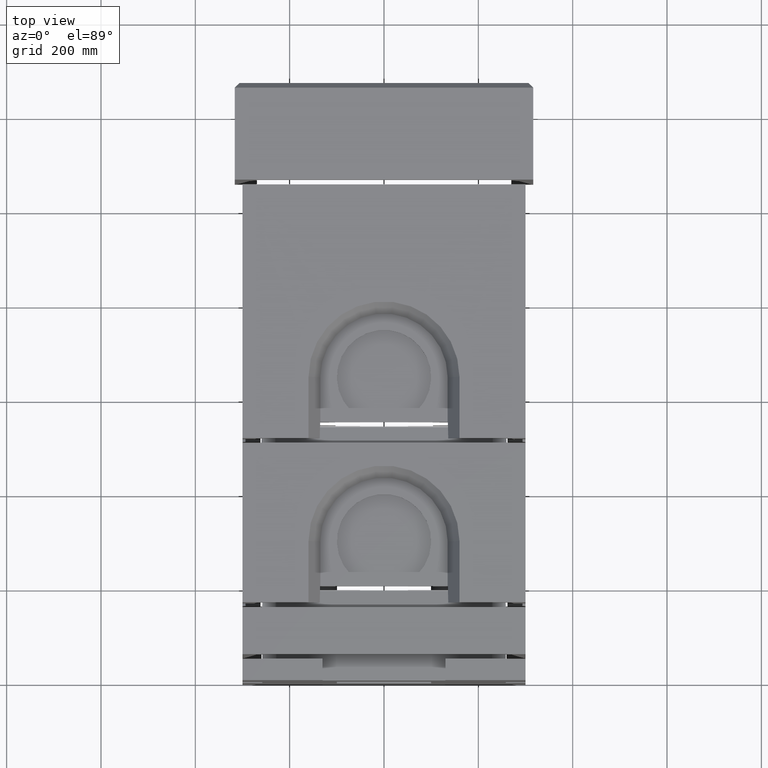
[diagram: clean part render]
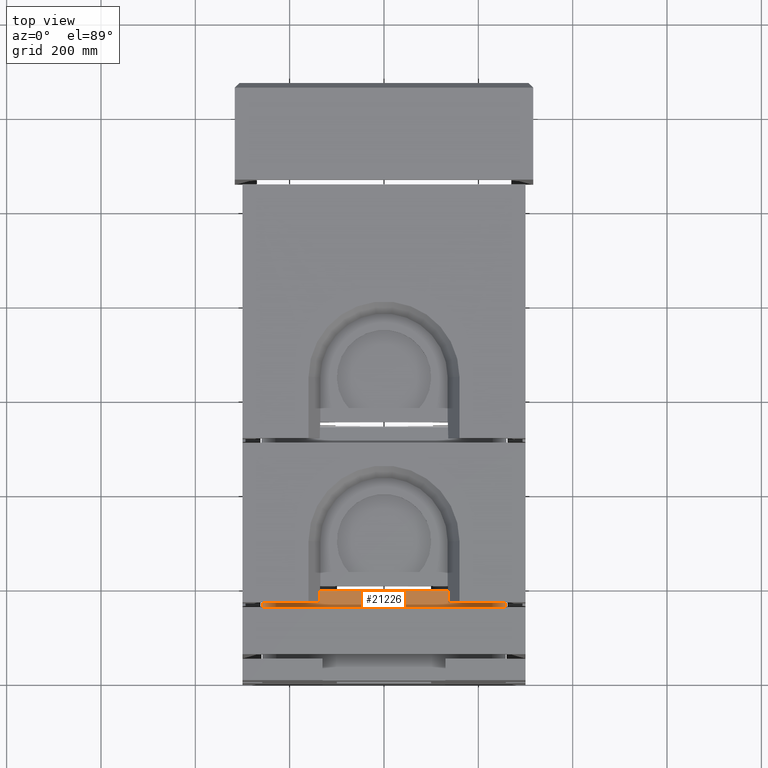
[diagram: same view with one face highlighted and labeled with its STEP entity id]
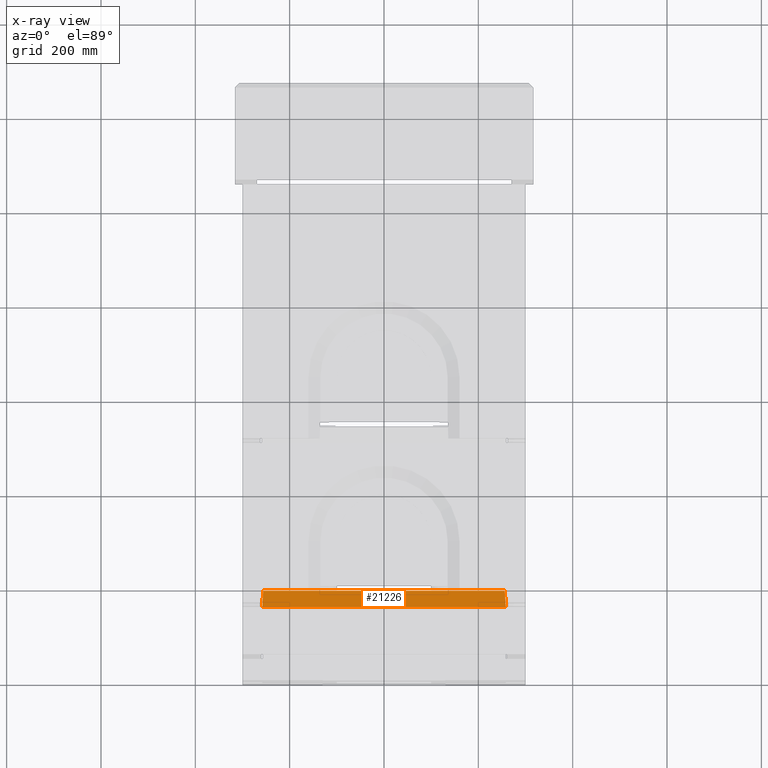
[diagram: x-ray of the same camera — body ghosted, the highlighted face saturated]
A machine part, top view. The second image highlights one B-rep face of the part: STEP entity #21226.
The next image is the same camera in x-ray: the body ghosted, the highlighted face saturated — about 0% of this face is hidden behind the body in this view.
In plain terms, the highlighted planar face has unit normal (0, -0.0698, -0.9976).
Its self-contained STEP definition (entity closure, byte-faithful):
#205 = LINE ( 'NONE', #24830, #3917 ) ;
#379 = EDGE_CURVE ( 'NONE', #14379, #6678, #30280, .T. ) ;
#1327 = ORIENTED_EDGE ( 'NONE', *, *, #18035, .F. ) ;
#2154 = EDGE_LOOP ( 'NONE', ( #1327, #23235, #14408, #22185 ) ) ;
#2172 = VERTEX_POINT ( 'NONE', #13981 ) ;
#2481 = DIRECTION ( 'NONE',  ( 0.06958737431666474349, 0.9951458157835084695, -0.06958737431666425777 ) ) ;
#2626 = VERTEX_POINT ( 'NONE', #13727 ) ;
#3917 = VECTOR ( 'NONE', #27915, 1000.000000000000227 ) ;
#4752 = DIRECTION ( 'NONE',  ( 4.932371184069785945E-17, 0.9975640502598243087, -0.06975647374412489998 ) ) ;
#4812 = CARTESIAN_POINT ( 'NONE',  ( -256.0000000000000568, 189.9999999999996305, 256.0000000000000000 ) ) ;
#4872 = VECTOR ( 'NONE', #9854, 1000.000000000000000 ) ;
#6678 = VERTEX_POINT ( 'NONE', #11514 ) ;
#9854 = DIRECTION ( 'NONE',  ( 1.000000000000000000, -4.823111849521172529E-17, 1.734723475976807094E-17 ) ) ;
#11514 = CARTESIAN_POINT ( 'NONE',  ( -256.0000000000000568, 189.9999999999996305, 255.9999999999999432 ) ) ;
#12623 = CARTESIAN_POINT ( 'NONE',  ( -256.0000000000000568, 189.9999999999996305, 256.0000000000000000 ) ) ;
#13727 = CARTESIAN_POINT ( 'NONE',  ( 255.9999999999998863, 189.9999999999996021, 256.0000000000000000 ) ) ;
#13873 = VECTOR ( 'NONE', #2481, 1000.000000000000227 ) ;
#13981 = CARTESIAN_POINT ( 'NONE',  ( 258.4474384180227844, 154.9999999999996021, 258.4474384180228412 ) ) ;
#14379 = VERTEX_POINT ( 'NONE', #25411 ) ;
#14408 = ORIENTED_EDGE ( 'NONE', *, *, #23356, .T. ) ;
#17477 = DIRECTION ( 'NONE',  ( 1.000000000000000000, -4.823111849521172529E-17, 1.734723475976807094E-17 ) ) ;
#18035 = EDGE_CURVE ( 'NONE', #6678, #2626, #28595, .T. ) ;
#20103 = EDGE_CURVE ( 'NONE', #2172, #2626, #205, .T. ) ;
#20422 = DIRECTION ( 'NONE',  ( 1.394054501680121067E-17, -0.06975647374412489998, -0.9975640502598243087 ) ) ;
#21226 = ADVANCED_FACE ( 'NONE', ( #28755 ), #33734, .F. ) ;
#21642 = VECTOR ( 'NONE', #17477, 1000.000000000000000 ) ;
#22185 = ORIENTED_EDGE ( 'NONE', *, *, #20103, .T. ) ;
#23235 = ORIENTED_EDGE ( 'NONE', *, *, #379, .F. ) ;
#23356 = EDGE_CURVE ( 'NONE', #14379, #2172, #33573, .T. ) ;
#24830 = CARTESIAN_POINT ( 'NONE',  ( 253.5206898358847241, 225.4557872038855066, 253.5206898358847809 ) ) ;
#25411 = CARTESIAN_POINT ( 'NONE',  ( -258.4474384180228981, 154.9999999999996305, 258.4474384180228412 ) ) ;
#27744 = AXIS2_PLACEMENT_3D ( 'NONE', #12623, #20422, #4752 ) ;
#27915 = DIRECTION ( 'NONE',  ( -0.06958737431666466022, 0.9951458157835084695, -0.06958737431666425777 ) ) ;
#28595 = LINE ( 'NONE', #4812, #21642 ) ;
#28755 = FACE_OUTER_BOUND ( 'NONE', #2154, .T. ) ;
#30280 = LINE ( 'NONE', #31532, #13873 ) ;
#30917 = CARTESIAN_POINT ( 'NONE',  ( -5.551115123125782702E-14, 154.9999999999996021, 258.4474384180228412 ) ) ;
#31532 = CARTESIAN_POINT ( 'NONE',  ( -253.5206898358847809, 225.4557872038855351, 253.5206898358847809 ) ) ;
#33573 = LINE ( 'NONE', #30917, #4872 ) ;
#33734 = PLANE ( 'NONE',  #27744 ) ;